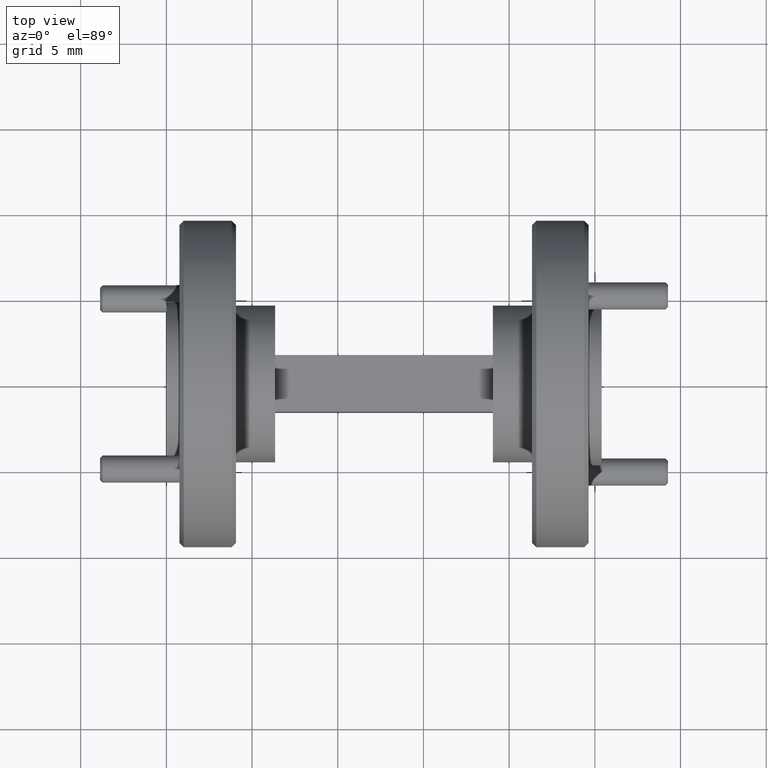
[diagram: clean part render]
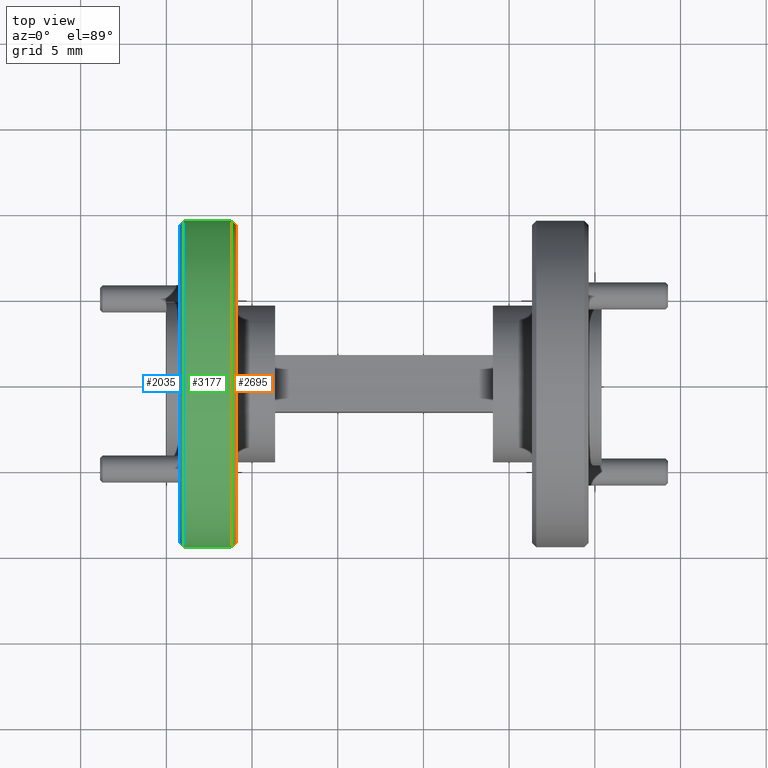
[diagram: same view with three faces highlighted in distinct colors, each labeled with its STEP entity id]
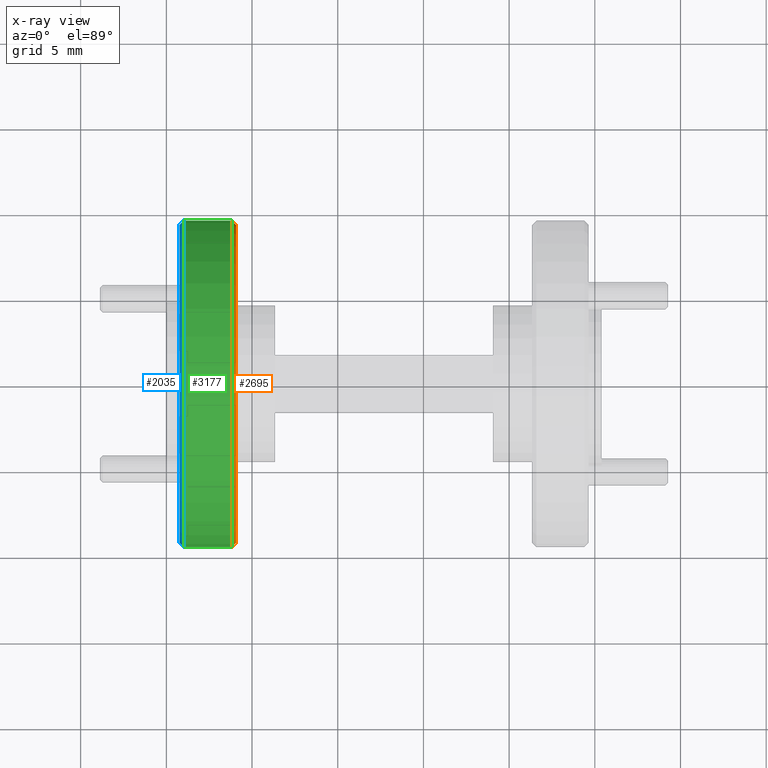
[diagram: x-ray of the same camera — body ghosted, the three highlighted faces saturated]
A machine part, top view with three faces highlighted in distinct colors.
The next image is the same camera in x-ray (body ghosted, the three faces saturated) — at least one of them is partly hidden behind the body in this view.
Their STEP definitions:

[orange] entity #2695 — the highlighted conical surface has half-angle 45 deg.
#24 = AXIS2_PLACEMENT_3D ( 'NONE', #1403, #30, #3713 ) ;
#30 = DIRECTION ( 'NONE',  ( -1.000000000000000000, -1.224646799147350500E-016, 0.0000000000000000000 ) ) ;
#169 = AXIS2_PLACEMENT_3D ( 'NONE', #883, #242, #4236 ) ;
#242 = DIRECTION ( 'NONE',  ( 1.000000000000000000, 1.224646799147353500E-016, -0.0000000000000000000 ) ) ;
#578 = LINE ( 'NONE', #3518, #2877 ) ;
#687 = CONICAL_SURFACE ( 'NONE', #24, 0.3649999999999997100, 0.7853981633974525000 ) ;
#869 = VERTEX_POINT ( 'NONE', #3199 ) ;
#883 = CARTESIAN_POINT ( 'NONE',  ( 0.1600000000000000300, 1.901877013581963200E-017, 0.0000000000000000000 ) ) ;
#1045 = CARTESIAN_POINT ( 'NONE',  ( 0.1600000000000000000, 0.3649999999999997100, 4.531193156845203600E-017 ) ) ;
#1403 = CARTESIAN_POINT ( 'NONE',  ( 0.1600000000000000300, 1.901877013581963200E-017, 0.0000000000000000000 ) ) ;
#1643 = CARTESIAN_POINT ( 'NONE',  ( 0.1500000000000001600, 1.779412333667229700E-017, 0.0000000000000000000 ) ) ;
#1664 = DIRECTION ( 'NONE',  ( -1.365923996832132800E-016, 1.000000000000000000, 0.0000000000000000000 ) ) ;
#1866 = VECTOR ( 'NONE', #3813, 39.37007874015748900 ) ;
#2069 = CIRCLE ( 'NONE', #3945, 0.3749999999999996700 ) ;
#2102 = EDGE_CURVE ( 'NONE', #3877, #3770, #2069, .T. ) ;
#2161 = LINE ( 'NONE', #3135, #1866 ) ;
#2212 = EDGE_LOOP ( 'NONE', ( #3787, #3387, #2576, #3829 ) ) ;
#2301 = DIRECTION ( 'NONE',  ( -1.000000000000000000, -1.224646799147350500E-016, 0.0000000000000000000 ) ) ;
#2576 = ORIENTED_EDGE ( 'NONE', *, *, #2102, .F. ) ;
#2695 = ADVANCED_FACE ( 'NONE', ( #3348 ), #687, .T. ) ;
#2703 = VERTEX_POINT ( 'NONE', #1045 ) ;
#2856 = EDGE_CURVE ( 'NONE', #2703, #3770, #2161, .T. ) ;
#2877 = VECTOR ( 'NONE', #3222, 39.37007874015748100 ) ;
#3018 = EDGE_CURVE ( 'NONE', #2703, #869, #3620, .T. ) ;
#3135 = CARTESIAN_POINT ( 'NONE',  ( 0.1600000000000000000, 0.3649999999999997100, 4.469960816887835500E-017 ) ) ;
#3173 = CARTESIAN_POINT ( 'NONE',  ( 0.1500000000000002200, -0.3749999999999996700, 4.592425496802570500E-017 ) ) ;
#3199 = CARTESIAN_POINT ( 'NONE',  ( 0.1600000000000000600, -0.3649999999999997100, 0.0000000000000000000 ) ) ;
#3222 = DIRECTION ( 'NONE',  ( -0.7071067811865444600, -0.7071067811865506800, 0.0000000000000000000 ) ) ;
#3348 = FACE_OUTER_BOUND ( 'NONE', #2212, .T. ) ;
#3387 = ORIENTED_EDGE ( 'NONE', *, *, #2856, .T. ) ;
#3388 = CARTESIAN_POINT ( 'NONE',  ( 0.1500000000000001100, 0.3749999999999996700, 0.0000000000000000000 ) ) ;
#3518 = CARTESIAN_POINT ( 'NONE',  ( 0.1600000000000000600, -0.3649999999999997100, 0.0000000000000000000 ) ) ;
#3620 = CIRCLE ( 'NONE', #169, 0.3649999999999997100 ) ;
#3713 = DIRECTION ( 'NONE',  ( 9.355643813918716900E-017, -1.000000000000000000, 0.0000000000000000000 ) ) ;
#3770 = VERTEX_POINT ( 'NONE', #3388 ) ;
#3787 = ORIENTED_EDGE ( 'NONE', *, *, #3018, .F. ) ;
#3813 = DIRECTION ( 'NONE',  ( -0.7071067811865445800, 0.7071067811865503500, 8.659560562354969800E-017 ) ) ;
#3829 = ORIENTED_EDGE ( 'NONE', *, *, #4226, .F. ) ;
#3877 = VERTEX_POINT ( 'NONE', #3173 ) ;
#3945 = AXIS2_PLACEMENT_3D ( 'NONE', #1643, #2301, #1664 ) ;
#4226 = EDGE_CURVE ( 'NONE', #869, #3877, #578, .T. ) ;
#4236 = DIRECTION ( 'NONE',  ( -9.355643813918716900E-017, 1.000000000000000000, 0.0000000000000000000 ) ) ;

[blue] entity #2035 — the highlighted conical surface has half-angle 45 deg.
#79 = EDGE_CURVE ( 'NONE', #2880, #2858, #533, .T. ) ;
#103 = VECTOR ( 'NONE', #1210, 39.37007874015748900 ) ;
#250 = ORIENTED_EDGE ( 'NONE', *, *, #2572, .F. ) ;
#257 = DIRECTION ( 'NONE',  ( 1.000000000000000000, 1.224646799147354200E-016, -0.0000000000000000000 ) ) ;
#270 = CARTESIAN_POINT ( 'NONE',  ( 0.03999999999999961900, 0.3749999999999996700, 0.0000000000000000000 ) ) ;
#280 = ORIENTED_EDGE ( 'NONE', *, *, #79, .F. ) ;
#372 = LINE ( 'NONE', #407, #103 ) ;
#407 = CARTESIAN_POINT ( 'NONE',  ( 0.03999999999999961900, 0.3749999999999996700, 0.0000000000000000000 ) ) ;
#533 = CIRCLE ( 'NONE', #3748, 0.3649999999999999900 ) ;
#586 = VECTOR ( 'NONE', #998, 39.37007874015748100 ) ;
#834 = CARTESIAN_POINT ( 'NONE',  ( 0.02999999999999999200, 0.3649999999999999900, 0.0000000000000000000 ) ) ;
#843 = ORIENTED_EDGE ( 'NONE', *, *, #2595, .T. ) ;
#998 = DIRECTION ( 'NONE',  ( 0.7071067811865454600, -0.7071067811865496800, 8.659560562354961200E-017 ) ) ;
#1210 = DIRECTION ( 'NONE',  ( 0.7071067811865451300, 0.7071067811865497900, 0.0000000000000000000 ) ) ;
#1310 = DIRECTION ( 'NONE',  ( 1.000000000000000000, 1.224646799147354200E-016, -0.0000000000000000000 ) ) ;
#1527 = EDGE_LOOP ( 'NONE', ( #280, #843, #250, #1540 ) ) ;
#1540 = ORIENTED_EDGE ( 'NONE', *, *, #2855, .F. ) ;
#1752 = CARTESIAN_POINT ( 'NONE',  ( 0.03999999999999970200, -0.3749999999999996700, 4.592425496802570500E-017 ) ) ;
#1918 = LINE ( 'NONE', #3950, #586 ) ;
#2009 = DIRECTION ( 'NONE',  ( 1.169455476739838800E-016, -1.000000000000000000, 0.0000000000000000000 ) ) ;
#2035 = ADVANCED_FACE ( 'NONE', ( #4248 ), #3579, .T. ) ;
#2572 = EDGE_CURVE ( 'NONE', #2636, #3239, #3090, .T. ) ;
#2595 = EDGE_CURVE ( 'NONE', #2880, #3239, #1918, .T. ) ;
#2636 = VERTEX_POINT ( 'NONE', #270 ) ;
#2644 = DIRECTION ( 'NONE',  ( -1.000000000000000000, -1.224646799147353500E-016, 0.0000000000000000000 ) ) ;
#2834 = CARTESIAN_POINT ( 'NONE',  ( 0.03000000000000007900, -0.3649999999999999900, 4.531193156845204800E-017 ) ) ;
#2855 = EDGE_CURVE ( 'NONE', #2858, #2636, #372, .T. ) ;
#2858 = VERTEX_POINT ( 'NONE', #834 ) ;
#2870 = CARTESIAN_POINT ( 'NONE',  ( 0.03999999999999966100, 4.323008546051345900E-018, 0.0000000000000000000 ) ) ;
#2880 = VERTEX_POINT ( 'NONE', #2834 ) ;
#2889 = DIRECTION ( 'NONE',  ( 1.138269997360110700E-016, -1.000000000000000000, 0.0000000000000000000 ) ) ;
#3090 = CIRCLE ( 'NONE', #4219, 0.3749999999999996700 ) ;
#3239 = VERTEX_POINT ( 'NONE', #1752 ) ;
#3319 = CARTESIAN_POINT ( 'NONE',  ( 0.03000000000000003400, 3.098361746904037400E-018, 0.0000000000000000000 ) ) ;
#3579 = CONICAL_SURFACE ( 'NONE', #3863, 0.3749999999999996700, 0.7853981633974515000 ) ;
#3609 = CARTESIAN_POINT ( 'NONE',  ( 0.03999999999999966100, 4.323008546051345900E-018, 0.0000000000000000000 ) ) ;
#3748 = AXIS2_PLACEMENT_3D ( 'NONE', #3319, #2644, #2009 ) ;
#3863 = AXIS2_PLACEMENT_3D ( 'NONE', #3609, #1310, #3956 ) ;
#3950 = CARTESIAN_POINT ( 'NONE',  ( 0.03999999999999970200, -0.3749999999999996700, 4.592425496802570500E-017 ) ) ;
#3956 = DIRECTION ( 'NONE',  ( -1.138269997360110700E-016, 1.000000000000000000, 0.0000000000000000000 ) ) ;
#4219 = AXIS2_PLACEMENT_3D ( 'NONE', #2870, #257, #2889 ) ;
#4248 = FACE_OUTER_BOUND ( 'NONE', #1527, .T. ) ;

[green] entity #3177 — the highlighted cylindrical surface (partial cylindrical patch) has radius 9.525 mm, axis along (1, 0, -0).
#4 = LINE ( 'NONE', #386, #2327 ) ;
#120 = LINE ( 'NONE', #261, #3678 ) ;
#257 = DIRECTION ( 'NONE',  ( 1.000000000000000000, 1.224646799147354200E-016, -0.0000000000000000000 ) ) ;
#261 = CARTESIAN_POINT ( 'NONE',  ( -1.863366677477526400E-013, 0.3749999999999996700, 0.0000000000000000000 ) ) ;
#270 = CARTESIAN_POINT ( 'NONE',  ( 0.03999999999999961900, 0.3749999999999996700, 0.0000000000000000000 ) ) ;
#386 = CARTESIAN_POINT ( 'NONE',  ( -1.862448192378166200E-013, -0.3749999999999996700, 4.592425496802570500E-017 ) ) ;
#657 = CARTESIAN_POINT ( 'NONE',  ( -1.862907434927846300E-013, -5.755786505608412800E-019, 0.0000000000000000000 ) ) ;
#874 = ORIENTED_EDGE ( 'NONE', *, *, #2363, .T. ) ;
#906 = AXIS2_PLACEMENT_3D ( 'NONE', #657, #3628, #1341 ) ;
#1214 = ORIENTED_EDGE ( 'NONE', *, *, #2572, .T. ) ;
#1231 = FACE_OUTER_BOUND ( 'NONE', #2611, .T. ) ;
#1341 = DIRECTION ( 'NONE',  ( -1.224646799147020700E-016, 1.000000000000000000, 0.0000000000000000000 ) ) ;
#1392 = CYLINDRICAL_SURFACE ( 'NONE', #906, 0.3749999999999996700 ) ;
#1643 = CARTESIAN_POINT ( 'NONE',  ( 0.1500000000000001600, 1.779412333667229700E-017, 0.0000000000000000000 ) ) ;
#1664 = DIRECTION ( 'NONE',  ( -1.365923996832132800E-016, 1.000000000000000000, 0.0000000000000000000 ) ) ;
#1752 = CARTESIAN_POINT ( 'NONE',  ( 0.03999999999999970200, -0.3749999999999996700, 4.592425496802570500E-017 ) ) ;
#1809 = ORIENTED_EDGE ( 'NONE', *, *, #2136, .F. ) ;
#2069 = CIRCLE ( 'NONE', #3945, 0.3749999999999996700 ) ;
#2102 = EDGE_CURVE ( 'NONE', #3877, #3770, #2069, .T. ) ;
#2136 = EDGE_CURVE ( 'NONE', #2636, #3770, #120, .T. ) ;
#2301 = DIRECTION ( 'NONE',  ( -1.000000000000000000, -1.224646799147350500E-016, 0.0000000000000000000 ) ) ;
#2327 = VECTOR ( 'NONE', #4062, 39.37007874015748100 ) ;
#2363 = EDGE_CURVE ( 'NONE', #3239, #3877, #4, .T. ) ;
#2554 = ORIENTED_EDGE ( 'NONE', *, *, #2102, .T. ) ;
#2572 = EDGE_CURVE ( 'NONE', #2636, #3239, #3090, .T. ) ;
#2592 = DIRECTION ( 'NONE',  ( 1.000000000000000000, 1.224646799147353500E-016, -0.0000000000000000000 ) ) ;
#2611 = EDGE_LOOP ( 'NONE', ( #1214, #874, #2554, #1809 ) ) ;
#2636 = VERTEX_POINT ( 'NONE', #270 ) ;
#2870 = CARTESIAN_POINT ( 'NONE',  ( 0.03999999999999966100, 4.323008546051345900E-018, 0.0000000000000000000 ) ) ;
#2889 = DIRECTION ( 'NONE',  ( 1.138269997360110700E-016, -1.000000000000000000, 0.0000000000000000000 ) ) ;
#3090 = CIRCLE ( 'NONE', #4219, 0.3749999999999996700 ) ;
#3173 = CARTESIAN_POINT ( 'NONE',  ( 0.1500000000000002200, -0.3749999999999996700, 4.592425496802570500E-017 ) ) ;
#3177 = ADVANCED_FACE ( 'NONE', ( #1231 ), #1392, .T. ) ;
#3239 = VERTEX_POINT ( 'NONE', #1752 ) ;
#3388 = CARTESIAN_POINT ( 'NONE',  ( 0.1500000000000001100, 0.3749999999999996700, 0.0000000000000000000 ) ) ;
#3628 = DIRECTION ( 'NONE',  ( 1.000000000000000000, 1.224646799147353500E-016, -0.0000000000000000000 ) ) ;
#3678 = VECTOR ( 'NONE', #2592, 39.37007874015748100 ) ;
#3770 = VERTEX_POINT ( 'NONE', #3388 ) ;
#3877 = VERTEX_POINT ( 'NONE', #3173 ) ;
#3945 = AXIS2_PLACEMENT_3D ( 'NONE', #1643, #2301, #1664 ) ;
#4062 = DIRECTION ( 'NONE',  ( 1.000000000000000000, 1.224646799147353500E-016, -0.0000000000000000000 ) ) ;
#4219 = AXIS2_PLACEMENT_3D ( 'NONE', #2870, #257, #2889 ) ;